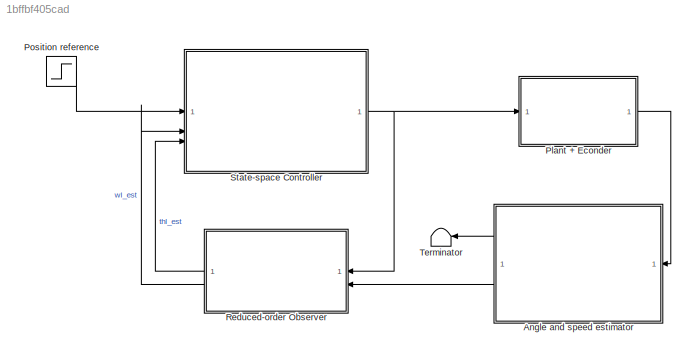
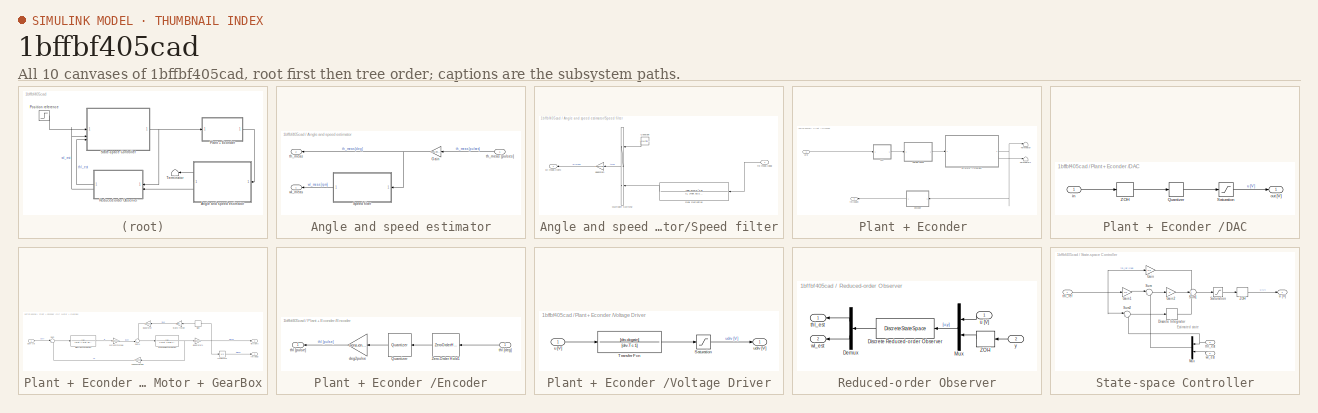
[diagram: thumbnail index - all 10 canvases of the model, root first then tree order]
MODEL slx_1bffbf405cad
KIND model
CONFIG AbsTol = auto
CONFIG EnableMultiTasking = off
CONFIG FixedStep = auto
CONFIG MaxStep = auto
CONFIG MinStep = auto
CONFIG RelTol = 1e-3
CONFIG SampleTimeConstraint = Unconstrained
CONFIG SolverName = VariableStepAuto
CONFIG StartTime = 0.0
CONFIG StopTime = 10.0
BLOCK [SubSystem] Angle and speed estimator
  NameLocation = top
BLOCK [Gain] Angle and speed estimator/Gain
  Gain = sens.enc.pulse2deg
  NameLocation = top
BLOCK [SubSystem] Angle and speed estimator/Speed filter
  NameLocation = top
BLOCK [Constant] Angle and speed estimator/Speed filter/Constant
  NameLocation = top
  Value = simul.filtselect
BLOCK [MultiPortSwitch] Angle and speed estimator/Speed filter/Multiport Switch2
  InputSameDT = off
  Inputs = 2
  NameLocation = top
  SaturateOnIntegerOverflow = off
BLOCK [TransferFcn] Angle and speed estimator/Speed filter/Real Derivative
  Denominator = [1, 2*der.dSS*der.wcSS, der.wcSS^2]
  NameLocation = top
  Numerator = [der.wcSS^2 0]
BLOCK [Gain] Angle and speed estimator/Speed filter/degs2rpm
  Gain = degs2rpm
BLOCK [Inport] Angle and speed estimator/Speed filter/thl-meas [deg]
BLOCK [Outport] Angle and speed estimator/Speed filter/wl-meas [rpm]
BLOCK [Outport] Angle and speed estimator/th_meas
  Port = 2
BLOCK [Inport] Angle and speed estimator/th_meas [pulses]
  NameLocation = top
BLOCK [Outport] Angle and speed estimator/wl_meas
BLOCK [SubSystem] Plant + Econder 
BLOCK [SubSystem] Plant + Econder /DAC
BLOCK [Quantizer] Plant + Econder /DAC/Quantizer
  QuantizationInterval = 1
BLOCK [Saturate] Plant + Econder /DAC/Saturation
  LowerLimit = -10
  UpperLimit = 10
BLOCK [ZeroOrderHold] Plant + Econder /DAC/ZOH
  SampleTime = 0.001
BLOCK [Inport] Plant + Econder /DAC/in
BLOCK [Outport] Plant + Econder /DAC/out [V]
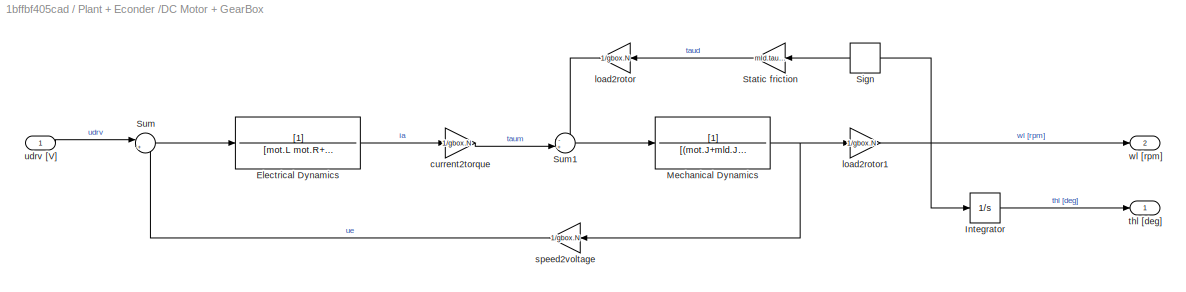
BLOCK [SubSystem] Plant + Econder /DC Motor + GearBox
BLOCK [TransferFcn] Plant + Econder /DC Motor + GearBox/Electrical Dynamics
  Denominator = [mot.L mot.R+sens.curr.Rs]
BLOCK [Integrator] Plant + Econder /DC Motor + GearBox/Integrator
BLOCK [TransferFcn] Plant + Econder /DC Motor + GearBox/Mechanical Dynamics
  Denominator = [(mot.J+mld.J/gbox.N^2) (mot.B+mld.B/gbox.N^2)]
BLOCK [Signum] Plant + Econder /DC Motor + GearBox/Sign
  NameLocation = top
  ZeroCross = off
BLOCK [Gain] Plant + Econder /DC Motor + GearBox/Static friction
  Gain = mld.tausf
  NameLocation = top
BLOCK [Sum] Plant + Econder /DC Motor + GearBox/Sum
  Inputs = |+-
BLOCK [Sum] Plant + Econder /DC Motor + GearBox/Sum1
  Inputs = -+|
BLOCK [Gain] Plant + Econder /DC Motor + GearBox/current2torque
  Gain = 1/gbox.N
BLOCK [Gain] Plant + Econder /DC Motor + GearBox/load2rotor
  Gain = 1/gbox.N
  NameLocation = top
BLOCK [Gain] Plant + Econder /DC Motor + GearBox/load2rotor1
  Gain = 1/gbox.N
BLOCK [Gain] Plant + Econder /DC Motor + GearBox/speed2voltage
  Gain = 1/gbox.N
  NameLocation = top
BLOCK [Outport] Plant + Econder /DC Motor + GearBox/thl [deg]
BLOCK [Inport] Plant + Econder /DC Motor + GearBox/udrv [V]
BLOCK [Outport] Plant + Econder /DC Motor + GearBox/wl [rpm]
  Port = 2
BLOCK [SubSystem] Plant + Econder /Encoder
  NameLocation = top
BLOCK [Quantizer] Plant + Econder /Encoder/Quantizer
  NameLocation = top
  QuantizationInterval = sens.enc.pulse2deg
BLOCK [ZeroOrderHold] Plant + Econder /Encoder/Zero-Order Hold1
  NameLocation = top
  SampleTime = 0.001
BLOCK [Gain] Plant + Econder /Encoder/deg2pulse
  Gain = sens.enc.deg2pulse
BLOCK [Inport] Plant + Econder /Encoder/thl [deg]
BLOCK [Outport] Plant + Econder /Encoder/thl [pulse]
BLOCK [Terminator] Plant + Econder /Terminator
BLOCK [Terminator] Plant + Econder /Terminator1
BLOCK [SubSystem] Plant + Econder /Voltage Driver
BLOCK [Saturate] Plant + Econder /Voltage Driver/Saturation
  LowerLimit = -12
  UpperLimit = 12
BLOCK [TransferFcn] Plant + Econder /Voltage Driver/Transfer Fcn
  Denominator = [drv.Tc 1]
  Numerator = [drv.dcgain]
BLOCK [Inport] Plant + Econder /Voltage Driver/u [V]
BLOCK [Outport] Plant + Econder /Voltage Driver/udrv [V]
BLOCK [Outport] Plant + Econder /thl [pulse]
BLOCK [Inport] Plant + Econder /u[V]
BLOCK [Step] Position reference
BLOCK [SubSystem] Reduced-order Observer
  NameLocation = top
BLOCK [Demux] Reduced-order Observer/Demux
  NameLocation = top
  Outputs = 2
BLOCK [DiscreteStateSpace] Reduced-order Observer/Discrete Reduced-order Observer
BLOCK [Mux] Reduced-order Observer/Mux
  DisplayOption = bar
  Inputs = 2
  NameLocation = top
BLOCK [ZeroOrderHold] Reduced-order Observer/ZOH
BLOCK [Outport] Reduced-order Observer/thl_est 
BLOCK [Inport] Reduced-order Observer/u [V]
BLOCK [Outport] Reduced-order Observer/wl_est
  Port = 2
BLOCK [Inport] Reduced-order Observer/y
  Port = 2
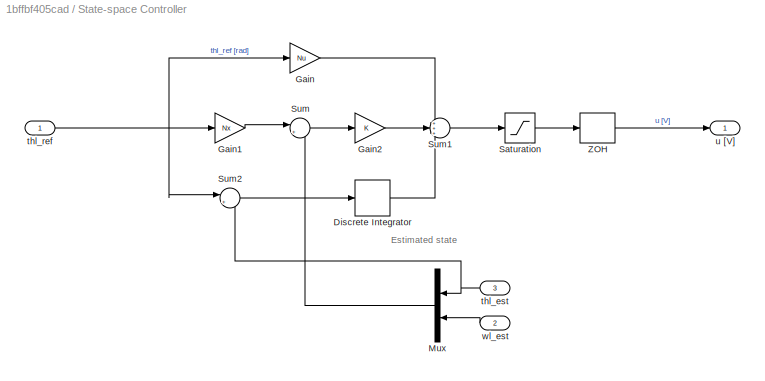
BLOCK [SubSystem] State-space Controller
BLOCK [DiscreteIntegrator] State-space Controller/Discrete Integrator
  ICPrevOutput = DiscIntNeverNeededParam
  ICPrevScaledInput = DiscIntNeverNeededParam
  InitialConditionSetting = Auto
  IntegratorMethod = Accumulation: Forward Euler
BLOCK [Gain] State-space Controller/Gain
  Gain = Nu
BLOCK [Gain] State-space Controller/Gain1
  Gain = Nx
BLOCK [Gain] State-space Controller/Gain2
  Gain = K
BLOCK [Mux] State-space Controller/Mux
  DisplayOption = bar
  Inputs = 2
  NameLocation = top
BLOCK [Saturate] State-space Controller/Saturation
  LowerLimit = -10
  UpperLimit = 10
BLOCK [Sum] State-space Controller/Sum
  Inputs = |+-
BLOCK [Sum] State-space Controller/Sum1
  Inputs = +++
BLOCK [Sum] State-space Controller/Sum2
  Inputs = |+-
BLOCK [ZeroOrderHold] State-space Controller/ZOH
BLOCK [Inport] State-space Controller/thl_est
  NameLocation = top
  Port = 3
BLOCK [Inport] State-space Controller/thl_ref 
BLOCK [Outport] State-space Controller/u [V]
BLOCK [Inport] State-space Controller/wl_est
  NameLocation = top
  Port = 2
BLOCK [Terminator] Terminator
  NameLocation = top
ANNOTATION State-space Controller: Estimated state
NET Angle and speed estimator/Gain:1 -> Angle and speed estimator/Speed filter:1, Angle and speed estimator/th_meas:1
LINE Angle and speed estimator/Speed filter/Constant:1 -> Angle and speed estimator/Speed filter/Multiport Switch2:1
LINE Angle and speed estimator/Speed filter/Multiport Switch2:1 -> Angle and speed estimator/Speed filter/degs2rpm:1
LINE Angle and speed estimator/Speed filter/Real Derivative:1 -> Angle and speed estimator/Speed filter/Multiport Switch2:3
LINE Angle and speed estimator/Speed filter/degs2rpm:1 -> Angle and speed estimator/Speed filter/wl-meas [rpm]:1
LINE Angle and speed estimator/Speed filter/thl-meas [deg]:1 -> Angle and speed estimator/Speed filter/Real Derivative:1
LINE Angle and speed estimator/Speed filter:1 -> Angle and speed estimator/wl_meas:1
LINE Angle and speed estimator/th_meas [pulses]:1 -> Angle and speed estimator/Gain:1
LINE Angle and speed estimator:1 -> Terminator:1
LINE Angle and speed estimator:2 -> Reduced-order Observer:2
LINE Plant + Econder /DAC/Quantizer:1 -> Plant + Econder /DAC/Saturation:1
LINE Plant + Econder /DAC/Saturation:1 -> Plant + Econder /DAC/out [V]:1
LINE Plant + Econder /DAC/ZOH:1 -> Plant + Econder /DAC/Quantizer:1
LINE Plant + Econder /DAC/in:1 -> Plant + Econder /DAC/ZOH:1
LINE Plant + Econder /DAC:1 -> Plant + Econder /Voltage Driver:1
LINE Plant + Econder /DC Motor + GearBox/Electrical Dynamics:1 -> Plant + Econder /DC Motor + GearBox/current2torque:1
LINE Plant + Econder /DC Motor + GearBox/Integrator:1 -> Plant + Econder /DC Motor + GearBox/thl [deg]:1
NET Plant + Econder /DC Motor + GearBox/Mechanical Dynamics:1 -> Plant + Econder /DC Motor + GearBox/load2rotor1:1, Plant + Econder /DC Motor + GearBox/speed2voltage:1
LINE Plant + Econder /DC Motor + GearBox/Sign:1 -> Plant + Econder /DC Motor + GearBox/Static friction:1
LINE Plant + Econder /DC Motor + GearBox/Static friction:1 -> Plant + Econder /DC Motor + GearBox/load2rotor:1
LINE Plant + Econder /DC Motor + GearBox/Sum1:1 -> Plant + Econder /DC Motor + GearBox/Mechanical Dynamics:1
LINE Plant + Econder /DC Motor + GearBox/Sum:1 -> Plant + Econder /DC Motor + GearBox/Electrical Dynamics:1
LINE Plant + Econder /DC Motor + GearBox/current2torque:1 -> Plant + Econder /DC Motor + GearBox/Sum1:2
NET Plant + Econder /DC Motor + GearBox/load2rotor1:1 -> Plant + Econder /DC Motor + GearBox/Integrator:1, Plant + Econder /DC Motor + GearBox/Sign:1, Plant + Econder /DC Motor + GearBox/wl [rpm]:1
LINE Plant + Econder /DC Motor + GearBox/load2rotor:1 -> Plant + Econder /DC Motor + GearBox/Sum1:1
LINE Plant + Econder /DC Motor + GearBox/speed2voltage:1 -> Plant + Econder /DC Motor + GearBox/Sum:2
LINE Plant + Econder /DC Motor + GearBox/udrv [V]:1 -> Plant + Econder /DC Motor + GearBox/Sum:1
NET Plant + Econder /DC Motor + GearBox:1 -> Plant + Econder /Encoder:1, Plant + Econder /Terminator:1
LINE Plant + Econder /DC Motor + GearBox:2 -> Plant + Econder /Terminator1:1
LINE Plant + Econder /Encoder/Quantizer:1 -> Plant + Econder /Encoder/deg2pulse:1
LINE Plant + Econder /Encoder/Zero-Order Hold1:1 -> Plant + Econder /Encoder/Quantizer:1
LINE Plant + Econder /Encoder/deg2pulse:1 -> Plant + Econder /Encoder/thl [pulse]:1
LINE Plant + Econder /Encoder/thl [deg]:1 -> Plant + Econder /Encoder/Zero-Order Hold1:1
LINE Plant + Econder /Encoder:1 -> Plant + Econder /thl [pulse]:1
LINE Plant + Econder /Voltage Driver/Saturation:1 -> Plant + Econder /Voltage Driver/udrv [V]:1
LINE Plant + Econder /Voltage Driver/Transfer Fcn:1 -> Plant + Econder /Voltage Driver/Saturation:1
LINE Plant + Econder /Voltage Driver/u [V]:1 -> Plant + Econder /Voltage Driver/Transfer Fcn:1
LINE Plant + Econder /Voltage Driver:1 -> Plant + Econder /DC Motor + GearBox:1
LINE Plant + Econder /u[V]:1 -> Plant + Econder /DAC:1
LINE Plant + Econder :1 -> Angle and speed estimator:1
LINE Position reference:1 -> State-space Controller:1
LINE Reduced-order Observer/Demux:1 -> Reduced-order Observer/thl_est :1
LINE Reduced-order Observer/Demux:2 -> Reduced-order Observer/wl_est:1
LINE Reduced-order Observer/Discrete Reduced-order Observer:1 -> Reduced-order Observer/Demux:1
LINE Reduced-order Observer/Mux:1 -> Reduced-order Observer/Discrete Reduced-order Observer:1
LINE Reduced-order Observer/ZOH:1 -> Reduced-order Observer/Mux:2
LINE Reduced-order Observer/u [V]:1 -> Reduced-order Observer/Mux:1
LINE Reduced-order Observer/y:1 -> Reduced-order Observer/ZOH:1
LINE Reduced-order Observer:1 -> State-space Controller:3
LINE Reduced-order Observer:2 -> State-space Controller:2
LINE State-space Controller/Discrete Integrator:1 -> State-space Controller/Sum1:3
LINE State-space Controller/Gain1:1 -> State-space Controller/Sum:1
LINE State-space Controller/Gain2:1 -> State-space Controller/Sum1:2
LINE State-space Controller/Gain:1 -> State-space Controller/Sum1:1
LINE State-space Controller/Mux:1 -> State-space Controller/Sum:2
LINE State-space Controller/Saturation:1 -> State-space Controller/ZOH:1
LINE State-space Controller/Sum1:1 -> State-space Controller/Saturation:1
LINE State-space Controller/Sum2:1 -> State-space Controller/Discrete Integrator:1
LINE State-space Controller/Sum:1 -> State-space Controller/Gain2:1
LINE State-space Controller/ZOH:1 -> State-space Controller/u [V]:1
NET State-space Controller/thl_est:1 -> State-space Controller/Mux:1, State-space Controller/Sum2:2
NET State-space Controller/thl_ref :1 -> State-space Controller/Gain1:1, State-space Controller/Gain:1, State-space Controller/Sum2:1
LINE State-space Controller/wl_est:1 -> State-space Controller/Mux:2
NET State-space Controller:1 -> Plant + Econder :1, Reduced-order Observer:1
note: NET lines group one-source signal fan-out (src -> all destinations, sorted); 1:1 wires keep LINE
